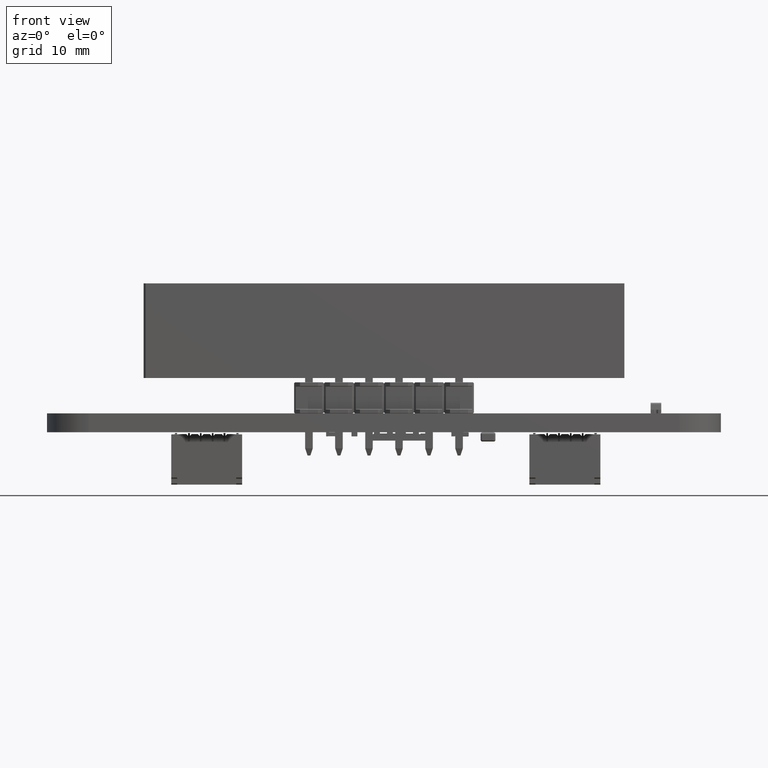
[diagram: clean part render]
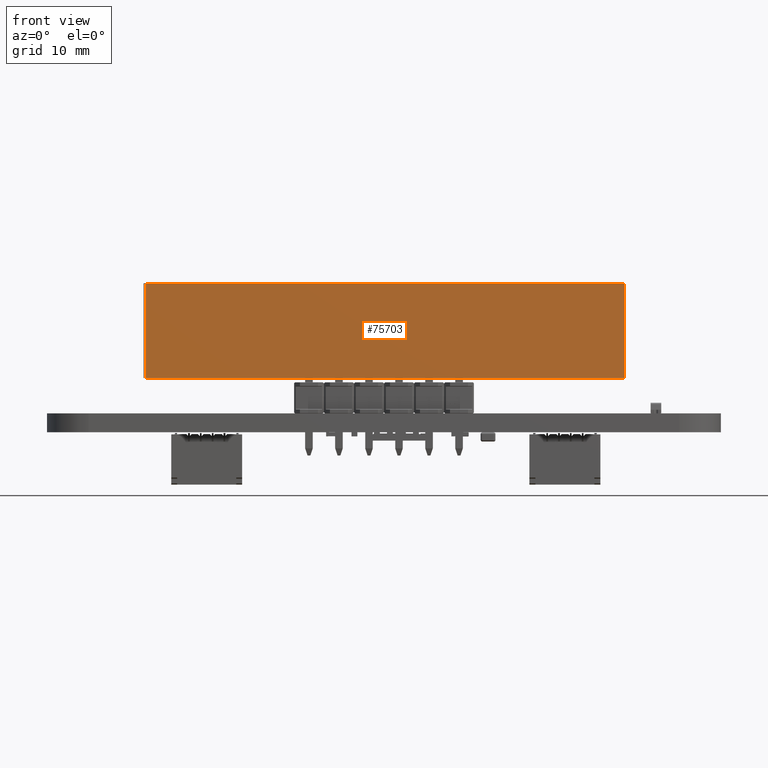
[diagram: same view with one face highlighted and labeled with its STEP entity id]
A machine part, front view. The second image highlights one B-rep face of the part: STEP entity #75703.
In plain terms, the highlighted planar face has unit normal (0, -1, 0).
Its self-contained STEP definition (entity closure, byte-faithful):
#75678 = VERTEX_POINT('',#75679);
#75679 = CARTESIAN_POINT('',(20.33380236,-7.99999924,8.00000178));
#75685 = EDGE_CURVE('',#75686,#75678,#75688,.T.);
#75686 = VERTEX_POINT('',#75687);
#75687 = CARTESIAN_POINT('',(20.33380236,-7.99999924,0.));
#75688 = LINE('',#75689,#75690);
#75689 = CARTESIAN_POINT('',(20.33380236,-7.99999924,0.));
#75690 = VECTOR('',#75691,1.);
#75691 = DIRECTION('',(0.,0.,1.));
#75703 = ADVANCED_FACE('',(#75704),#75729,.T.);
#75704 = FACE_BOUND('',#75705,.T.);
#75705 = EDGE_LOOP('',(#75706,#75707,#75715,#75723));
#75706 = ORIENTED_EDGE('',*,*,#75685,.T.);
#75707 = ORIENTED_EDGE('',*,*,#75708,.T.);
#75708 = EDGE_CURVE('',#75678,#75709,#75711,.T.);
#75709 = VERTEX_POINT('',#75710);
#75710 = CARTESIAN_POINT('',(-20.16619792,-7.99999924,8.00000178));
#75711 = LINE('',#75712,#75713);
#75712 = CARTESIAN_POINT('',(20.33380236,-7.99999924,8.00000178));
#75713 = VECTOR('',#75714,1.);
#75714 = DIRECTION('',(-1.,0.,0.));
#75715 = ORIENTED_EDGE('',*,*,#75716,.F.);
#75716 = EDGE_CURVE('',#75717,#75709,#75719,.T.);
#75717 = VERTEX_POINT('',#75718);
#75718 = CARTESIAN_POINT('',(-20.16619792,-7.99999924,0.));
#75719 = LINE('',#75720,#75721);
#75720 = CARTESIAN_POINT('',(-20.16619792,-7.99999924,0.));
#75721 = VECTOR('',#75722,1.);
#75722 = DIRECTION('',(0.,0.,1.));
#75723 = ORIENTED_EDGE('',*,*,#75724,.F.);
#75724 = EDGE_CURVE('',#75686,#75717,#75725,.T.);
#75725 = LINE('',#75726,#75727);
#75726 = CARTESIAN_POINT('',(20.33380236,-7.99999924,0.));
#75727 = VECTOR('',#75728,1.);
#75728 = DIRECTION('',(-1.,0.,0.));
#75729 = PLANE('',#75730);
#75730 = AXIS2_PLACEMENT_3D('',#75731,#75732,#75733);
#75731 = CARTESIAN_POINT('',(20.33380236,-7.99999924,0.));
#75732 = DIRECTION('',(0.,-1.,0.));
#75733 = DIRECTION('',(-1.,0.,0.));